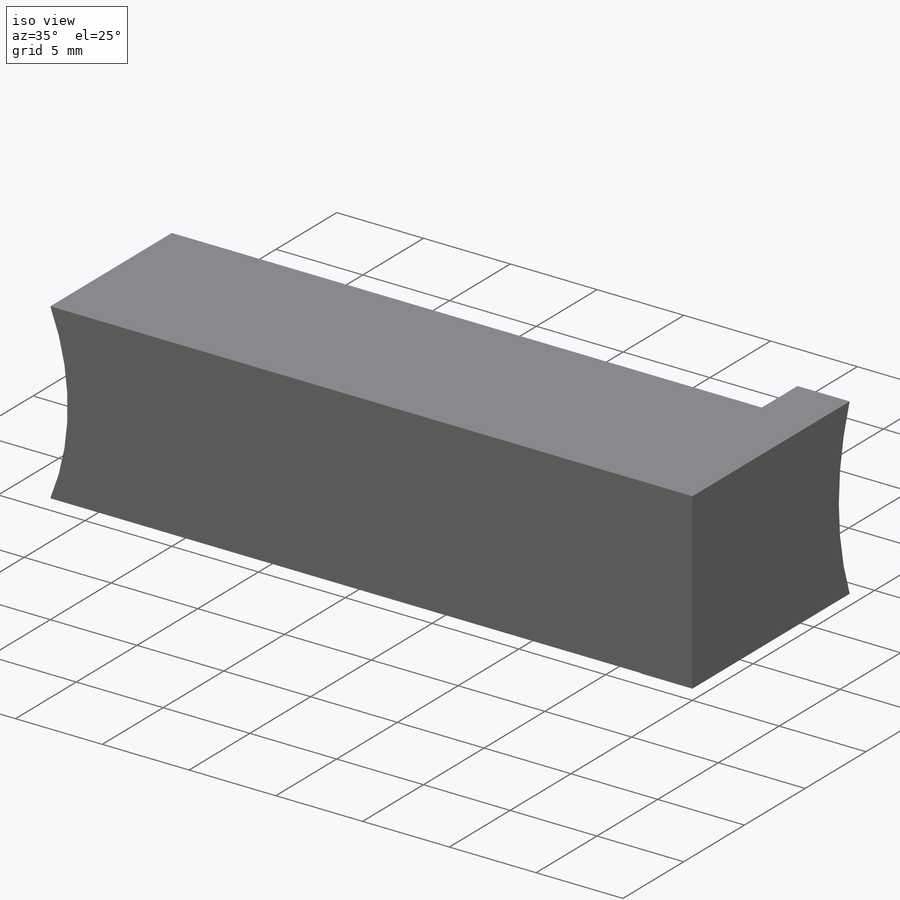
[diagram: iso view]
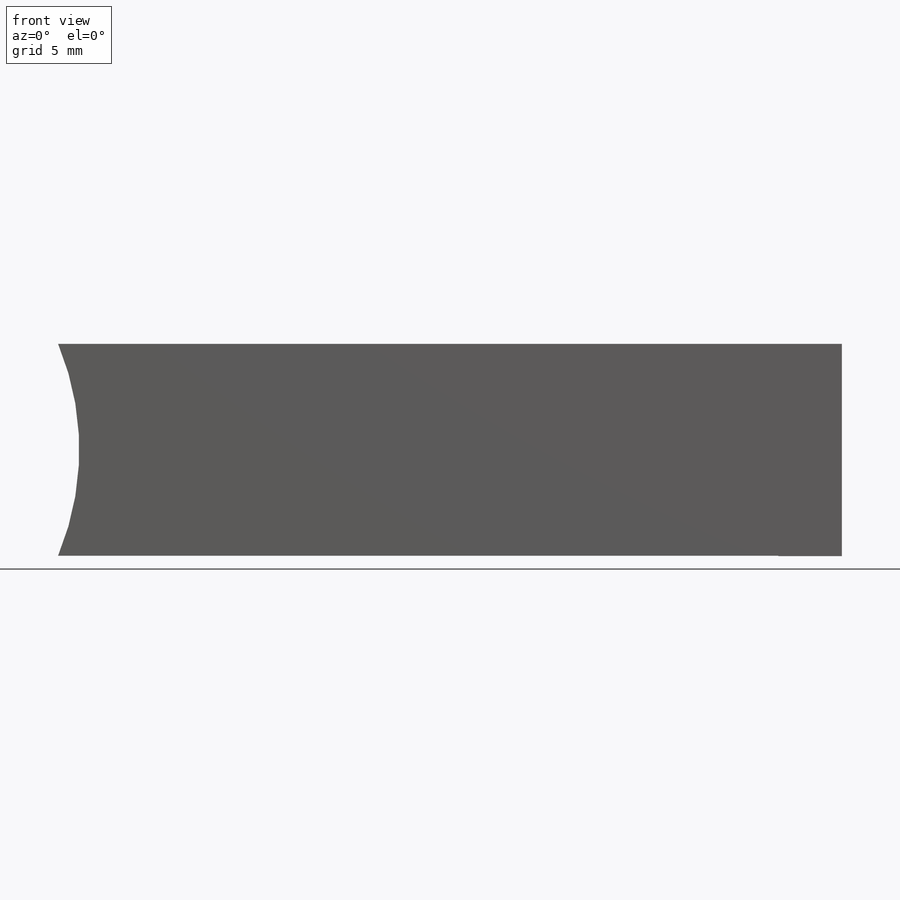
[diagram: front view]
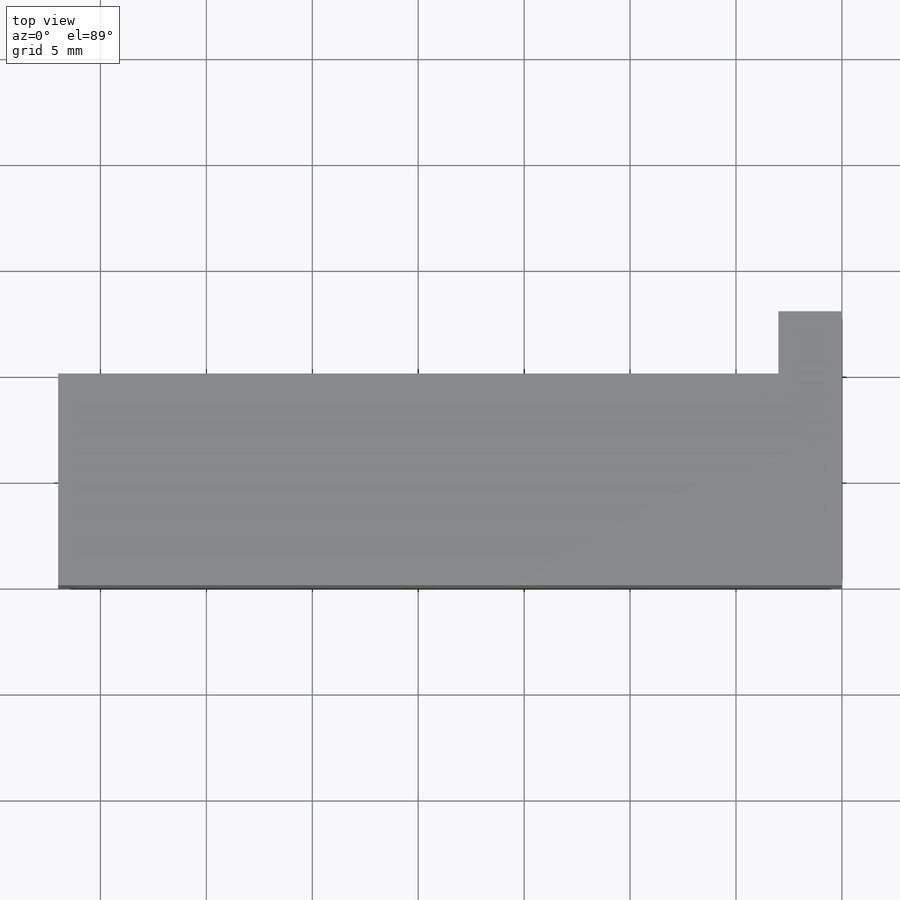
[diagram: top view]
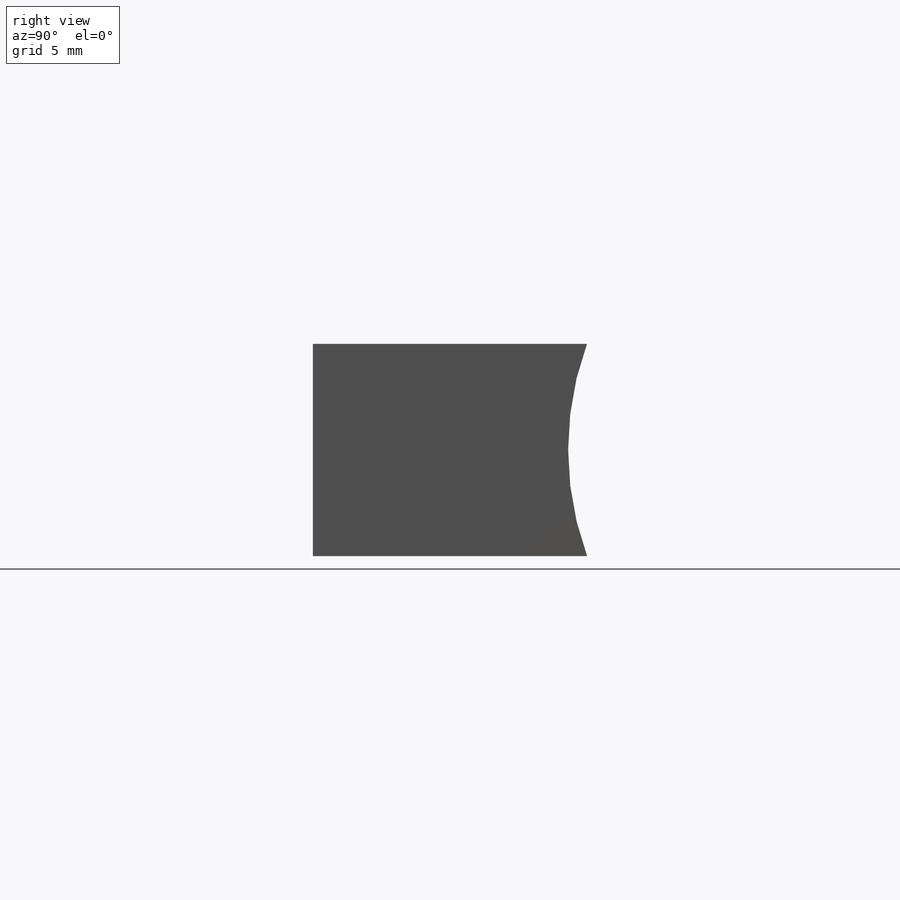
[diagram: right view]
SOLIDWORKS PART (.sldprt)
format: sldprt  version: not decoded by parser v0  size: 108,544 bytes
history: native  units: mm
features: sketch x4, plane x3, extrude x2, cut_extrude x2, material x1 (+12 scaffold rows collapsed)
feature tree (24):
  scaffold x12  (default folders/planes/origin — collapsed)
  material  "Material <não especificado>"
  plane  "Plano frontal"
  plane  "Plano superior"
  plane  "Plano direito"
  sketch  "Esboço1"  dims[D1=10.0mm D2=10.0mm]
  extrude  "Extrusão1"  Depth=40mm
  sketch  "Esboço2"  dims[D1=0.0mm]
  extrude  "Extrusão2"  Depth=3mm
  sketch  "Esboço3"  dims[D1=29.0mm D2=16.55mm]
  cut_extrude  "Corte-extrusão1"  Depth=23mm
  sketch  "Esboço4"  dims[D1=26.0mm D2=49.0mm D3=3.0mm]
  cut_extrude  "Corte-extrusão2"  Depth=23mm
decode coverage: 8 of 8 modeling features carry decoded parameters
note: suppression state not decoded; provenance and decode notes live in map.json
